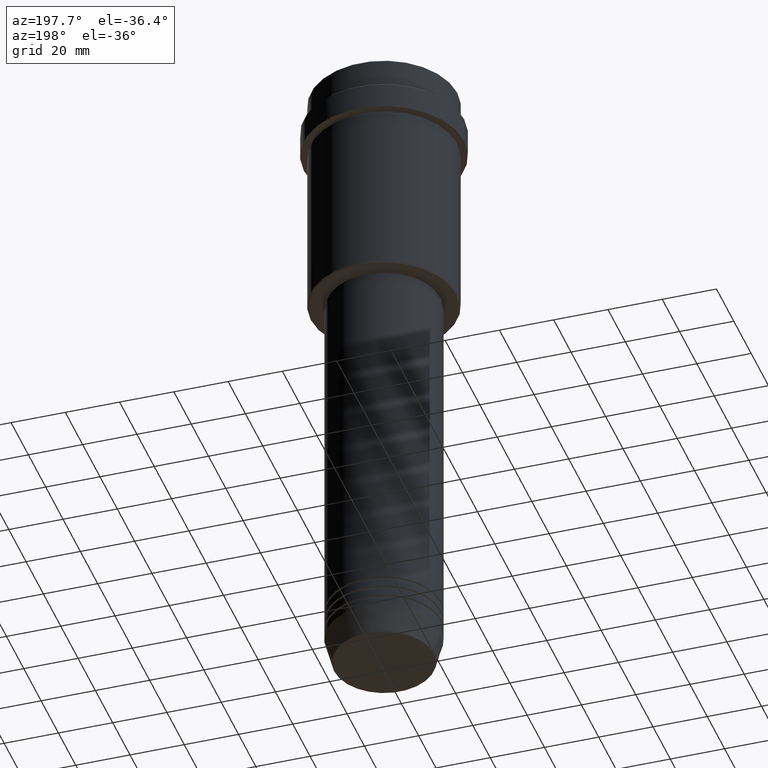
[diagram: clean part render]
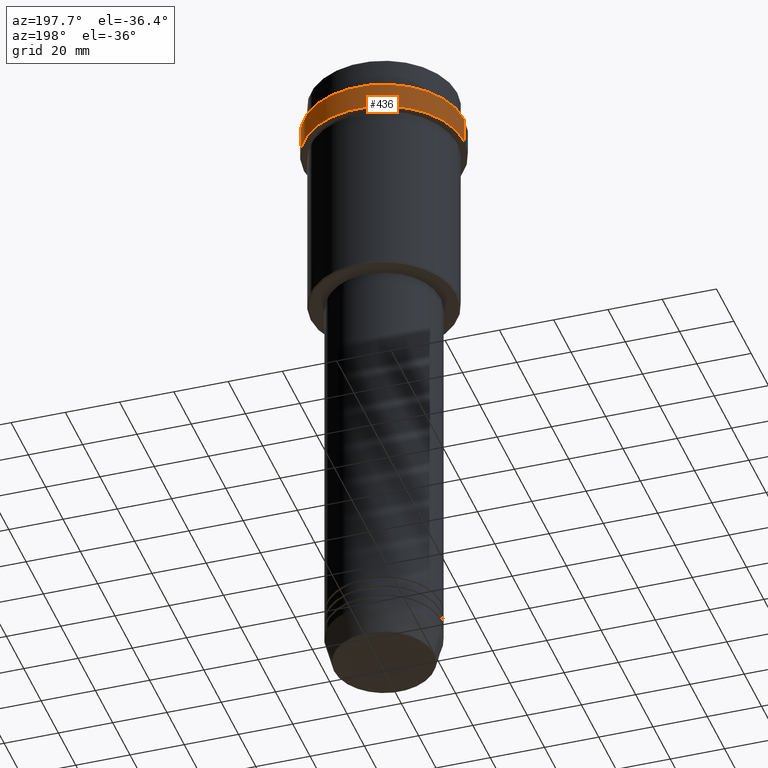
[diagram: same view with one face highlighted and labeled with its STEP entity id]
A machine part, auxiliary view. The second image highlights one B-rep face of the part: STEP entity #436.
In plain terms, the highlighted cylindrical surface (partial cylindrical patch) has radius 29.5 mm, axis along (-0, -0, 1).
Its self-contained STEP definition (entity closure, byte-faithful):
#15 = AXIS2_PLACEMENT_3D ( 'NONE', #467, #53, #676 ) ;
#30 = VERTEX_POINT ( 'NONE', #1110 ) ;
#53 = DIRECTION ( 'NONE',  ( 0.000000000000000000, 0.000000000000000000, -1.000000000000000000 ) ) ;
#62 = EDGE_CURVE ( 'NONE', #30, #1084, #1273, .T. ) ;
#88 = DIRECTION ( 'NONE',  ( -0.000000000000000000, -0.000000000000000000, 1.000000000000000000 ) ) ;
#141 = AXIS2_PLACEMENT_3D ( 'NONE', #267, #88, #1150 ) ;
#145 = EDGE_CURVE ( 'NONE', #30, #619, #722, .T. ) ;
#240 = CYLINDRICAL_SURFACE ( 'NONE', #700, 29.50000000000000000 ) ;
#257 = ORIENTED_EDGE ( 'NONE', *, *, #62, .F. ) ;
#267 = CARTESIAN_POINT ( 'NONE',  ( 0.000000000000000000, 0.000000000000000000, -22.00000000000000711 ) ) ;
#340 = CARTESIAN_POINT ( 'NONE',  ( -29.50000000000000000, 3.612708057484691604E-15, 0.000000000000000000 ) ) ;
#359 = FACE_OUTER_BOUND ( 'NONE', #1188, .T. ) ;
#371 = DIRECTION ( 'NONE',  ( -0.000000000000000000, -0.000000000000000000, 1.000000000000000000 ) ) ;
#399 = EDGE_CURVE ( 'NONE', #619, #1364, #1254, .T. ) ;
#436 = ADVANCED_FACE ( 'NONE', ( #359 ), #240, .T. ) ;
#447 = DIRECTION ( 'NONE',  ( -0.000000000000000000, -0.000000000000000000, 1.000000000000000000 ) ) ;
#467 = CARTESIAN_POINT ( 'NONE',  ( 0.000000000000000000, 0.000000000000000000, -12.49999999999994849 ) ) ;
#483 = CARTESIAN_POINT ( 'NONE',  ( 29.50000000000000000, 0.000000000000000000, -12.49999999999994849 ) ) ;
#574 = ORIENTED_EDGE ( 'NONE', *, *, #399, .T. ) ;
#590 = CIRCLE ( 'NONE', #15, 29.50000000000000000 ) ;
#619 = VERTEX_POINT ( 'NONE', #1280 ) ;
#629 = VECTOR ( 'NONE', #1373, 1000.000000000000000 ) ;
#676 = DIRECTION ( 'NONE',  ( 1.000000000000000000, 0.000000000000000000, 0.000000000000000000 ) ) ;
#700 = AXIS2_PLACEMENT_3D ( 'NONE', #901, #371, #1012 ) ;
#713 = ORIENTED_EDGE ( 'NONE', *, *, #145, .T. ) ;
#722 = CIRCLE ( 'NONE', #141, 29.49999999999999645 ) ;
#770 = CARTESIAN_POINT ( 'NONE',  ( -29.50000000000000000, 3.612708057484691604E-15, -12.49999999999994849 ) ) ;
#828 = EDGE_CURVE ( 'NONE', #1364, #1084, #590, .T. ) ;
#890 = ORIENTED_EDGE ( 'NONE', *, *, #828, .T. ) ;
#901 = CARTESIAN_POINT ( 'NONE',  ( 0.000000000000000000, 0.000000000000000000, 0.000000000000000000 ) ) ;
#1012 = DIRECTION ( 'NONE',  ( 1.000000000000000000, 0.000000000000000000, 0.000000000000000000 ) ) ;
#1084 = VERTEX_POINT ( 'NONE', #483 ) ;
#1110 = CARTESIAN_POINT ( 'NONE',  ( 29.49999999999999645, 0.000000000000000000, -22.00000000000000711 ) ) ;
#1140 = CARTESIAN_POINT ( 'NONE',  ( 29.50000000000000000, 0.000000000000000000, 0.000000000000000000 ) ) ;
#1150 = DIRECTION ( 'NONE',  ( 1.000000000000000000, 0.000000000000000000, 0.000000000000000000 ) ) ;
#1188 = EDGE_LOOP ( 'NONE', ( #713, #574, #890, #257 ) ) ;
#1254 = LINE ( 'NONE', #340, #1271 ) ;
#1271 = VECTOR ( 'NONE', #447, 1000.000000000000000 ) ;
#1273 = LINE ( 'NONE', #1140, #629 ) ;
#1280 = CARTESIAN_POINT ( 'NONE',  ( -29.49999999999999645, 3.612708057484690815E-15, -22.00000000000000711 ) ) ;
#1364 = VERTEX_POINT ( 'NONE', #770 ) ;
#1373 = DIRECTION ( 'NONE',  ( -0.000000000000000000, -0.000000000000000000, 1.000000000000000000 ) ) ;